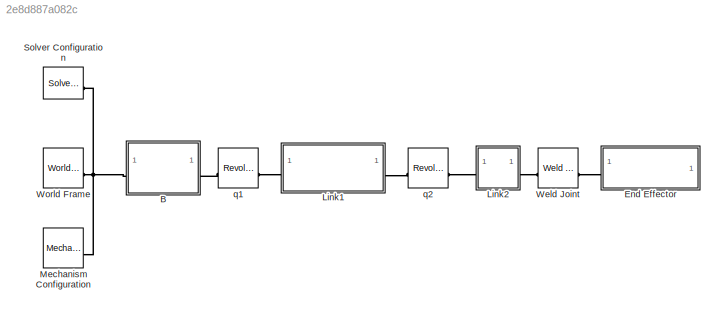
MODEL slx_2e8d887a082c
KIND model
CONFIG AbsTol = 1e-3
CONFIG EnableMultiTasking = on
CONFIG FixedStep = auto
CONFIG MaxStep = auto
CONFIG MinStep = auto
CONFIG RelTol = 1e-3
CONFIG SampleTimeConstraint = Unconstrained
CONFIG SolverName = VariableStepAuto
CONFIG StartTime = 0.0
CONFIG StopTime = 10.0
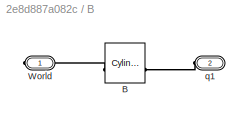
BLOCK [SubSystem] B
BLOCK [Reference] B/B  REF=sm_lib/Body Elements/Cylindrical Solid
  NameLocation = top
  SourceBlock = sm_lib/Body Elements/Cylindrical Solid
  SourceType = Cylindrical Solid
BLOCK [PMIOPort] B/World
  Side = Right
BLOCK [PMIOPort] B/q1
  Port = 2
  Side = Left
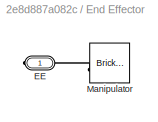
BLOCK [SubSystem] End Effector
BLOCK [PMIOPort] End Effector/EE
  Side = Right
BLOCK [Reference] End Effector/Manipulator  REF=sm_lib/Body Elements/Brick Solid
  SourceBlock = sm_lib/Body Elements/Brick Solid
  SourceType = Brick Solid
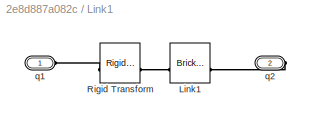
BLOCK [SubSystem] Link1
BLOCK [Reference] Link1/Link1  REF=sm_lib/Body Elements/Brick Solid
  SourceBlock = sm_lib/Body Elements/Brick Solid
  SourceType = Brick Solid
BLOCK [Reference] Link1/Rigid Transform  REF=sm_lib/Frames and
Transforms/Rigid
Transform
  SourceBlock = sm_lib/Frames and\nTransforms/Rigid\nTransform
  SourceType = Rigid\nTransform
BLOCK [PMIOPort] Link1/q1
  Side = Left
BLOCK [PMIOPort] Link1/q2
  Port = 2
  Side = Right
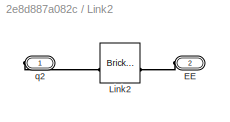
BLOCK [SubSystem] Link2
BLOCK [PMIOPort] Link2/EE
  Port = 2
  Side = Left
BLOCK [Reference] Link2/Link2  REF=sm_lib/Body Elements/Brick Solid
  NameLocation = top
  SourceBlock = sm_lib/Body Elements/Brick Solid
  SourceType = Brick Solid
BLOCK [PMIOPort] Link2/q2
  Side = Right
BLOCK [Reference] Mechanism Configuration  REF=sm_lib/Utilities/Mechanism
Configuration
  SourceBlock = sm_lib/Utilities/Mechanism\nConfiguration
  SourceType = Mechanism\nConfiguration
BLOCK [Reference] Solver Configuration  REF=nesl_utility/Solver
Configuration
  SourceBlock = nesl_utility/Solver\nConfiguration
  SourceType = Solver\nConfiguration
BLOCK [Reference] Weld Joint  REF=sm_lib/Joints/Weld Joint
  SourceBlock = sm_lib/Joints/Weld Joint
  SourceType = Weld Joint
BLOCK [Reference] World Frame  REF=sm_lib/Frames and
Transforms/World Frame
  SourceBlock = sm_lib/Frames and\nTransforms/World Frame
  SourceType = World Frame
BLOCK [Reference] q1  REF=sm_lib/Joints/Revolute Joint
  SourceBlock = sm_lib/Joints/Revolute Joint
  SourceType = Revolute Joint
BLOCK [Reference] q2  REF=sm_lib/Joints/Revolute Joint
  SourceBlock = sm_lib/Joints/Revolute Joint
  SourceType = Revolute Joint
PLINE B/B:LConn1 -- B/q1:RConn1
PLINE B/B:RConn1 -- B/World:RConn1
PLINE B:LConn1 -- q1:LConn1
PNET net1: B:RConn1 -- Mechanism Configuration:RConn1 -- Solver Configuration:RConn1 -- World Frame:RConn1
PLINE End Effector/EE:RConn1 -- End Effector/Manipulator:LConn1
PLINE End Effector:RConn1 -- Weld Joint:RConn1
PLINE Link1/Link1:LConn1 -- Link1/q2:RConn1
PLINE Link1/Link1:RConn1 -- Link1/Rigid Transform:RConn1
PLINE Link1/Rigid Transform:LConn1 -- Link1/q1:RConn1
PLINE Link1:LConn1 -- q1:RConn1
PLINE Link1:RConn1 -- q2:LConn1
PLINE Link2/EE:RConn1 -- Link2/Link2:LConn1
PLINE Link2/Link2:RConn1 -- Link2/q2:RConn1
PLINE Link2:LConn1 -- Weld Joint:LConn1
PLINE Link2:RConn1 -- q2:RConn1
note: PNET lines group multi-terminal physical nets as a canonical sorted terminal list (undirected conserving connections); 2-terminal nets keep the pairwise PLINE form
